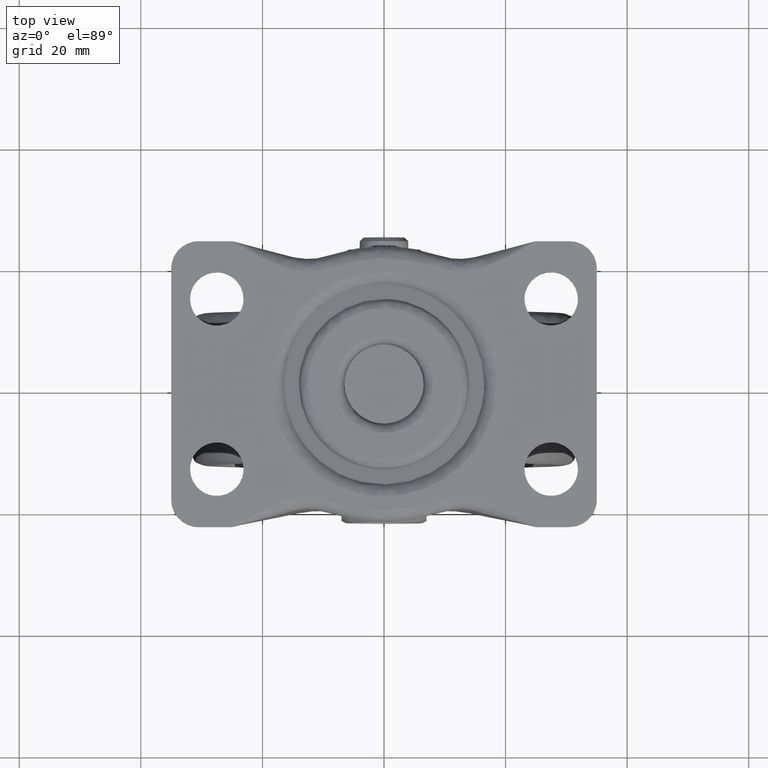
[diagram: clean part render]
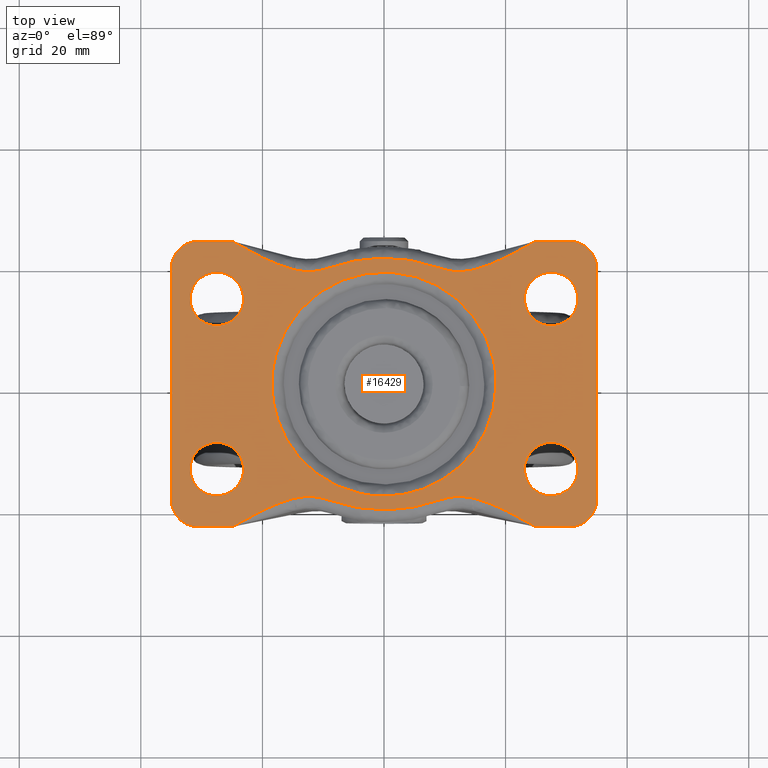
[diagram: same view with one face highlighted and labeled with its STEP entity id]
A machine part, top view. The second image highlights one B-rep face of the part: STEP entity #16429.
In plain terms, the highlighted face is a freeform B-spline surface patch.
Its self-contained STEP definition (entity closure, byte-faithful):
#7246=CARTESIAN_POINT('',(-28.019350644347199,9.630757984705339,52.500000000000000));
#7247=VERTEX_POINT('',#7246);
#7253=CARTESIAN_POINT('',(-23.099999900000000,14.0,52.500000000000000));
#7254=VERTEX_POINT('',#7253);
#7255=CARTESIAN_POINT('',(-28.019350644347199,9.630757984705339,52.500000000000007));
#7256=CARTESIAN_POINT('',(-27.760586132445432,9.599999900000000,52.500000000000000));
#7257=CARTESIAN_POINT('',(-27.500000000000000,9.599999900000000,52.500000000000000));
#7258=CARTESIAN_POINT('',(-23.099999900000004,9.599999900000000,52.500000000000000));
#7259=CARTESIAN_POINT('',(-23.099999900000000,14.0,52.500000000000000));
#7267=(BOUNDED_CURVE()B_SPLINE_CURVE(2,(#7255,#7256,#7257,#7258,#7259),.UNSPECIFIED.,.F.,.U.)B_SPLINE_CURVE_WITH_KNOTS((3,2,3),(0.229562473511464,0.250000000000000,0.500000000000000),.UNSPECIFIED.)CURVE()GEOMETRIC_REPRESENTATION_ITEM()RATIONAL_B_SPLINE_CURVE((0.956026754179692,0.976055948328750,1.0,0.707106781186547,1.0))REPRESENTATION_ITEM(''));
#7268=EDGE_CURVE('',#7247,#7254,#7267,.T.);
#7270=CARTESIAN_POINT('',(-27.231386419819021,18.391793212862190,52.500000000000000));
#7271=VERTEX_POINT('',#7270);
#7272=CARTESIAN_POINT('',(-23.099999900000000,14.0,52.500000000000000));
#7273=CARTESIAN_POINT('',(-23.099999900000011,18.139106788223827,52.500000000000000));
#7274=CARTESIAN_POINT('',(-27.231386419819014,18.391793212862186,52.500000000000007));
#7282=(BOUNDED_CURVE()B_SPLINE_CURVE(2,(#7272,#7273,#7274),.UNSPECIFIED.,.F.,.U.)B_SPLINE_CURVE_WITH_KNOTS((3,3),(0.500000000000000,0.739332962232321),.UNSPECIFIED.)CURVE()GEOMETRIC_REPRESENTATION_ITEM()RATIONAL_B_SPLINE_CURVE((1.0,0.719603993294468,0.976072041652527))REPRESENTATION_ITEM(''));
#7283=EDGE_CURVE('',#7254,#7271,#7282,.T.);
#7357=CARTESIAN_POINT('',(-31.900000100000000,14.0,52.500000000000000));
#7358=VERTEX_POINT('',#7357);
#7359=CARTESIAN_POINT('',(-27.231386419819014,18.391793212862186,52.500000000000000));
#7360=CARTESIAN_POINT('',(-27.365567838307832,18.400000100000007,52.500000000000000));
#7361=CARTESIAN_POINT('',(-27.500000000000000,18.400000100000000,52.500000000000000));
#7362=CARTESIAN_POINT('',(-31.900000099999996,18.400000100000000,52.500000000000000));
#7363=CARTESIAN_POINT('',(-31.900000100000000,14.0,52.500000000000000));
#7371=(BOUNDED_CURVE()B_SPLINE_CURVE(2,(#7359,#7360,#7361,#7362,#7363),.UNSPECIFIED.,.F.,.U.)B_SPLINE_CURVE_WITH_KNOTS((3,2,3),(0.739332962232322,0.750000000000000,1.0),.UNSPECIFIED.)CURVE()GEOMETRIC_REPRESENTATION_ITEM()RATIONAL_B_SPLINE_CURVE((0.976072041652528,0.987502787892081,1.0,0.707106781186547,1.0))REPRESENTATION_ITEM(''));
#7372=EDGE_CURVE('',#7271,#7358,#7371,.T.);
#7374=CARTESIAN_POINT('',(-31.900000100000000,14.0,52.500000000000000));
#7375=CARTESIAN_POINT('',(-31.900000099999989,10.092031997093882,52.499999999999993));
#7376=CARTESIAN_POINT('',(-28.019350644347206,9.630757984705339,52.500000000000000));
#7384=(BOUNDED_CURVE()B_SPLINE_CURVE(2,(#7374,#7375,#7376),.UNSPECIFIED.,.F.,.U.)B_SPLINE_CURVE_WITH_KNOTS((3,3),(0.0,0.229562473511464),.UNSPECIFIED.)CURVE()GEOMETRIC_REPRESENTATION_ITEM()RATIONAL_B_SPLINE_CURVE((1.0,0.731050832857798,0.956026754179692))REPRESENTATION_ITEM(''));
#7385=EDGE_CURVE('',#7358,#7247,#7384,.T.);
#7432=CARTESIAN_POINT('',(-28.019350644347199,-18.369242015294660,52.500000000000000));
#7433=VERTEX_POINT('',#7432);
#7439=CARTESIAN_POINT('',(-23.099999900000000,-14.0,52.500000000000000));
#7440=VERTEX_POINT('',#7439);
#7441=CARTESIAN_POINT('',(-28.019350644347199,-18.369242015294660,52.500000000000007));
#7442=CARTESIAN_POINT('',(-27.760586132445432,-18.400000100000003,52.500000000000000));
#7443=CARTESIAN_POINT('',(-27.500000000000000,-18.400000100000000,52.500000000000000));
#7444=CARTESIAN_POINT('',(-23.099999900000004,-18.400000100000000,52.500000000000000));
#7445=CARTESIAN_POINT('',(-23.099999900000000,-14.0,52.500000000000000));
#7453=(BOUNDED_CURVE()B_SPLINE_CURVE(2,(#7441,#7442,#7443,#7444,#7445),.UNSPECIFIED.,.F.,.U.)B_SPLINE_CURVE_WITH_KNOTS((3,2,3),(0.229562473511464,0.250000000000000,0.500000000000000),.UNSPECIFIED.)CURVE()GEOMETRIC_REPRESENTATION_ITEM()RATIONAL_B_SPLINE_CURVE((0.956026754179692,0.976055948328750,1.0,0.707106781186547,1.0))REPRESENTATION_ITEM(''));
#7454=EDGE_CURVE('',#7433,#7440,#7453,.T.);
#7456=CARTESIAN_POINT('',(-27.231386419819021,-9.608206787137814,52.500000000000000));
#7457=VERTEX_POINT('',#7456);
#7458=CARTESIAN_POINT('',(-23.099999900000000,-14.0,52.500000000000000));
#7459=CARTESIAN_POINT('',(-23.099999900000011,-9.860893211776180,52.500000000000000));
#7460=CARTESIAN_POINT('',(-27.231386419819014,-9.608206787137814,52.500000000000007));
#7468=(BOUNDED_CURVE()B_SPLINE_CURVE(2,(#7458,#7459,#7460),.UNSPECIFIED.,.F.,.U.)B_SPLINE_CURVE_WITH_KNOTS((3,3),(0.500000000000000,0.739332962232321),.UNSPECIFIED.)CURVE()GEOMETRIC_REPRESENTATION_ITEM()RATIONAL_B_SPLINE_CURVE((1.0,0.719603993294468,0.976072041652527))REPRESENTATION_ITEM(''));
#7469=EDGE_CURVE('',#7440,#7457,#7468,.T.);
#7543=CARTESIAN_POINT('',(-31.900000100000000,-14.0,52.500000000000000));
#7544=VERTEX_POINT('',#7543);
#7545=CARTESIAN_POINT('',(-27.231386419819014,-9.608206787137814,52.500000000000000));
#7546=CARTESIAN_POINT('',(-27.365567838307832,-9.599999900000002,52.500000000000000));
#7547=CARTESIAN_POINT('',(-27.500000000000000,-9.599999900000000,52.500000000000000));
#7548=CARTESIAN_POINT('',(-31.900000099999996,-9.599999900000000,52.500000000000000));
#7549=CARTESIAN_POINT('',(-31.900000100000000,-14.0,52.500000000000000));
#7557=(BOUNDED_CURVE()B_SPLINE_CURVE(2,(#7545,#7546,#7547,#7548,#7549),.UNSPECIFIED.,.F.,.U.)B_SPLINE_CURVE_WITH_KNOTS((3,2,3),(0.739332962232322,0.750000000000000,1.0),.UNSPECIFIED.)CURVE()GEOMETRIC_REPRESENTATION_ITEM()RATIONAL_B_SPLINE_CURVE((0.976072041652528,0.987502787892081,1.0,0.707106781186547,1.0))REPRESENTATION_ITEM(''));
#7558=EDGE_CURVE('',#7457,#7544,#7557,.T.);
#7560=CARTESIAN_POINT('',(-31.900000100000000,-14.0,52.500000000000000));
#7561=CARTESIAN_POINT('',(-31.900000099999989,-17.907968002906127,52.499999999999993));
#7562=CARTESIAN_POINT('',(-28.019350644347206,-18.369242015294670,52.500000000000000));
#7570=(BOUNDED_CURVE()B_SPLINE_CURVE(2,(#7560,#7561,#7562),.UNSPECIFIED.,.F.,.U.)B_SPLINE_CURVE_WITH_KNOTS((3,3),(0.0,0.229562473511464),.UNSPECIFIED.)CURVE()GEOMETRIC_REPRESENTATION_ITEM()RATIONAL_B_SPLINE_CURVE((1.0,0.731050832857798,0.956026754179692))REPRESENTATION_ITEM(''));
#7571=EDGE_CURVE('',#7544,#7433,#7570,.T.);
#7618=CARTESIAN_POINT('',(26.980649355652801,9.630757984705339,52.500000000000000));
#7619=VERTEX_POINT('',#7618);
#7625=CARTESIAN_POINT('',(31.900000100000000,14.0,52.500000000000000));
#7626=VERTEX_POINT('',#7625);
#7627=CARTESIAN_POINT('',(26.980649355652794,9.630757984705339,52.500000000000000));
#7628=CARTESIAN_POINT('',(27.239413867554571,9.599999900000000,52.500000000000000));
#7629=CARTESIAN_POINT('',(27.500000000000000,9.599999900000000,52.500000000000000));
#7630=CARTESIAN_POINT('',(31.900000099999996,9.599999900000000,52.500000000000000));
#7631=CARTESIAN_POINT('',(31.900000100000000,14.0,52.500000000000000));
#7639=(BOUNDED_CURVE()B_SPLINE_CURVE(2,(#7627,#7628,#7629,#7630,#7631),.UNSPECIFIED.,.F.,.U.)B_SPLINE_CURVE_WITH_KNOTS((3,2,3),(0.229562473511464,0.250000000000000,0.500000000000000),.UNSPECIFIED.)CURVE()GEOMETRIC_REPRESENTATION_ITEM()RATIONAL_B_SPLINE_CURVE((0.956026754179692,0.976055948328750,1.0,0.707106781186547,1.0))REPRESENTATION_ITEM(''));
#7640=EDGE_CURVE('',#7619,#7626,#7639,.T.);
#7642=CARTESIAN_POINT('',(27.768613580180979,18.391793212862190,52.500000000000000));
#7643=VERTEX_POINT('',#7642);
#7644=CARTESIAN_POINT('',(31.900000100000000,14.0,52.500000000000000));
#7645=CARTESIAN_POINT('',(31.900000099999993,18.139106788223827,52.500000000000000));
#7646=CARTESIAN_POINT('',(27.768613580180975,18.391793212862186,52.500000000000007));
#7654=(BOUNDED_CURVE()B_SPLINE_CURVE(2,(#7644,#7645,#7646),.UNSPECIFIED.,.F.,.U.)B_SPLINE_CURVE_WITH_KNOTS((3,3),(0.500000000000000,0.739332962232321),.UNSPECIFIED.)CURVE()GEOMETRIC_REPRESENTATION_ITEM()RATIONAL_B_SPLINE_CURVE((1.0,0.719603993294468,0.976072041652527))REPRESENTATION_ITEM(''));
#7655=EDGE_CURVE('',#7626,#7643,#7654,.T.);
#7729=CARTESIAN_POINT('',(23.099999900000000,14.0,52.500000000000000));
#7730=VERTEX_POINT('',#7729);
#7731=CARTESIAN_POINT('',(27.768613580180986,18.391793212862186,52.500000000000000));
#7732=CARTESIAN_POINT('',(27.634432161692171,18.400000100000007,52.500000000000000));
#7733=CARTESIAN_POINT('',(27.500000000000000,18.400000100000000,52.500000000000000));
#7734=CARTESIAN_POINT('',(23.099999900000004,18.400000100000000,52.500000000000000));
#7735=CARTESIAN_POINT('',(23.099999900000000,14.0,52.500000000000000));
#7743=(BOUNDED_CURVE()B_SPLINE_CURVE(2,(#7731,#7732,#7733,#7734,#7735),.UNSPECIFIED.,.F.,.U.)B_SPLINE_CURVE_WITH_KNOTS((3,2,3),(0.739332962232322,0.750000000000000,1.0),.UNSPECIFIED.)CURVE()GEOMETRIC_REPRESENTATION_ITEM()RATIONAL_B_SPLINE_CURVE((0.976072041652528,0.987502787892081,1.0,0.707106781186547,1.0))REPRESENTATION_ITEM(''));
#7744=EDGE_CURVE('',#7643,#7730,#7743,.T.);
#7746=CARTESIAN_POINT('',(23.099999900000000,14.0,52.500000000000000));
#7747=CARTESIAN_POINT('',(23.099999900000004,10.092031997093880,52.499999999999993));
#7748=CARTESIAN_POINT('',(26.980649355652798,9.630757984705339,52.500000000000000));
#7756=(BOUNDED_CURVE()B_SPLINE_CURVE(2,(#7746,#7747,#7748),.UNSPECIFIED.,.F.,.U.)B_SPLINE_CURVE_WITH_KNOTS((3,3),(0.0,0.229562473511464),.UNSPECIFIED.)CURVE()GEOMETRIC_REPRESENTATION_ITEM()RATIONAL_B_SPLINE_CURVE((1.0,0.731050832857798,0.956026754179692))REPRESENTATION_ITEM(''));
#7757=EDGE_CURVE('',#7730,#7619,#7756,.T.);
#7804=CARTESIAN_POINT('',(26.980649355652801,-18.369242015294660,52.500000000000000));
#7805=VERTEX_POINT('',#7804);
#7811=CARTESIAN_POINT('',(31.900000100000000,-14.0,52.500000000000000));
#7812=VERTEX_POINT('',#7811);
#7813=CARTESIAN_POINT('',(26.980649355652801,-18.369242015294663,52.500000000000000));
#7814=CARTESIAN_POINT('',(27.239413867554575,-18.400000100000007,52.500000000000007));
#7815=CARTESIAN_POINT('',(27.500000000000000,-18.400000100000000,52.500000000000000));
#7816=CARTESIAN_POINT('',(31.900000099999996,-18.400000100000000,52.500000000000000));
#7817=CARTESIAN_POINT('',(31.900000100000000,-14.0,52.500000000000000));
#7825=(BOUNDED_CURVE()B_SPLINE_CURVE(2,(#7813,#7814,#7815,#7816,#7817),.UNSPECIFIED.,.F.,.U.)B_SPLINE_CURVE_WITH_KNOTS((3,2,3),(0.229562473511464,0.250000000000000,0.500000000000000),.UNSPECIFIED.)CURVE()GEOMETRIC_REPRESENTATION_ITEM()RATIONAL_B_SPLINE_CURVE((0.956026754179691,0.976055948328749,1.0,0.707106781186547,1.0))REPRESENTATION_ITEM(''));
#7826=EDGE_CURVE('',#7805,#7812,#7825,.T.);
#7828=CARTESIAN_POINT('',(27.768613580180979,-9.608206787137814,52.500000000000000));
#7829=VERTEX_POINT('',#7828);
#7830=CARTESIAN_POINT('',(31.900000100000000,-14.0,52.500000000000000));
#7831=CARTESIAN_POINT('',(31.900000099999993,-9.860893211776180,52.500000000000000));
#7832=CARTESIAN_POINT('',(27.768613580180975,-9.608206787137814,52.500000000000007));
#7840=(BOUNDED_CURVE()B_SPLINE_CURVE(2,(#7830,#7831,#7832),.UNSPECIFIED.,.F.,.U.)B_SPLINE_CURVE_WITH_KNOTS((3,3),(0.500000000000000,0.739332962232321),.UNSPECIFIED.)CURVE()GEOMETRIC_REPRESENTATION_ITEM()RATIONAL_B_SPLINE_CURVE((1.0,0.719603993294468,0.976072041652527))REPRESENTATION_ITEM(''));
#7841=EDGE_CURVE('',#7812,#7829,#7840,.T.);
#7915=CARTESIAN_POINT('',(23.099999900000000,-14.0,52.500000000000000));
#7916=VERTEX_POINT('',#7915);
#7917=CARTESIAN_POINT('',(27.768613580180986,-9.608206787137814,52.500000000000000));
#7918=CARTESIAN_POINT('',(27.634432161692171,-9.599999900000002,52.500000000000000));
#7919=CARTESIAN_POINT('',(27.500000000000000,-9.599999900000000,52.500000000000000));
#7920=CARTESIAN_POINT('',(23.099999900000004,-9.599999900000000,52.500000000000000));
#7921=CARTESIAN_POINT('',(23.099999900000000,-14.0,52.500000000000000));
#7929=(BOUNDED_CURVE()B_SPLINE_CURVE(2,(#7917,#7918,#7919,#7920,#7921),.UNSPECIFIED.,.F.,.U.)B_SPLINE_CURVE_WITH_KNOTS((3,2,3),(0.739332962232322,0.750000000000000,1.0),.UNSPECIFIED.)CURVE()GEOMETRIC_REPRESENTATION_ITEM()RATIONAL_B_SPLINE_CURVE((0.976072041652528,0.987502787892081,1.0,0.707106781186547,1.0))REPRESENTATION_ITEM(''));
#7930=EDGE_CURVE('',#7829,#7916,#7929,.T.);
#7932=CARTESIAN_POINT('',(23.099999900000000,-14.0,52.500000000000000));
#7933=CARTESIAN_POINT('',(23.099999900000000,-17.907968002906127,52.500000000000014));
#7934=CARTESIAN_POINT('',(26.980649355652794,-18.369242015294656,52.500000000000000));
#7942=(BOUNDED_CURVE()B_SPLINE_CURVE(2,(#7932,#7933,#7934),.UNSPECIFIED.,.F.,.U.)B_SPLINE_CURVE_WITH_KNOTS((3,3),(0.0,0.229562473511464),.UNSPECIFIED.)CURVE()GEOMETRIC_REPRESENTATION_ITEM()RATIONAL_B_SPLINE_CURVE((1.0,0.731050832857798,0.956026754179692))REPRESENTATION_ITEM(''));
#7943=EDGE_CURVE('',#7916,#7805,#7942,.T.);
#8547=CARTESIAN_POINT('',(-4.009652861324489,-17.995191276802370,52.500000000000000));
#8548=VERTEX_POINT('',#8547);
#8562=CARTESIAN_POINT('',(18.436491673103699,0.0,52.500000000000000));
#8563=VERTEX_POINT('',#8562);
#8564=CARTESIAN_POINT('',(18.436491673103699,0.0,52.500000000000000));
#8565=CARTESIAN_POINT('',(18.436491673103699,-18.436491673103699,52.500000000000000));
#8566=CARTESIAN_POINT('',(0.0,-18.436491673103699,52.500000000000000));
#8567=CARTESIAN_POINT('',(-2.029111081623241,-18.436491673103699,52.500000000000000));
#8568=CARTESIAN_POINT('',(-4.009652861324490,-17.995191276802370,52.500000000000000));
#8576=(BOUNDED_CURVE()B_SPLINE_CURVE(2,(#8564,#8565,#8566,#8567,#8568),.UNSPECIFIED.,.F.,.U.)B_SPLINE_CURVE_WITH_KNOTS((3,2,3),(0.0,0.250000000000000,0.287215332191286),.UNSPECIFIED.)CURVE()GEOMETRIC_REPRESENTATION_ITEM()RATIONAL_B_SPLINE_CURVE((1.0,0.707106781186547,1.0,0.956399526261129,0.925779901433375))REPRESENTATION_ITEM(''));
#8577=EDGE_CURVE('',#8563,#8548,#8576,.T.);
#8579=CARTESIAN_POINT('',(-17.736415152733841,5.032276085577879,52.500000000000000));
#8580=VERTEX_POINT('',#8579);
#8581=CARTESIAN_POINT('',(-17.736415152733841,5.032276085577879,52.500000000000000));
#8582=CARTESIAN_POINT('',(-13.933295249412181,18.436491673103699,52.499999999999993));
#8583=CARTESIAN_POINT('',(0.0,18.436491673103699,52.500000000000000));
#8584=CARTESIAN_POINT('',(18.436491673103699,18.436491673103699,52.500000000000000));
#8585=CARTESIAN_POINT('',(18.436491673103699,0.0,52.500000000000000));
#8593=(BOUNDED_CURVE()B_SPLINE_CURVE(2,(#8581,#8582,#8583,#8584,#8585),.UNSPECIFIED.,.F.,.U.)B_SPLINE_CURVE_WITH_KNOTS((3,2,3),(0.546505535790469,0.750000000000000,1.0),.UNSPECIFIED.)CURVE()GEOMETRIC_REPRESENTATION_ITEM()RATIONAL_B_SPLINE_CURVE((0.911301444593821,0.761591405467806,1.0,0.707106781186547,1.0))REPRESENTATION_ITEM(''));
#8594=EDGE_CURVE('',#8580,#8563,#8593,.T.);
#8681=CARTESIAN_POINT('',(-18.436491673103699,0.0,52.500000000000000));
#8682=VERTEX_POINT('',#8681);
#8683=CARTESIAN_POINT('',(-18.436491673103699,0.0,52.500000000000000));
#8684=CARTESIAN_POINT('',(-18.436491673103692,2.564834410756939,52.500000000000007));
#8685=CARTESIAN_POINT('',(-17.736415152733844,5.032276085577879,52.500000000000007));
#8693=(BOUNDED_CURVE()B_SPLINE_CURVE(2,(#8683,#8684,#8685),.UNSPECIFIED.,.F.,.U.)B_SPLINE_CURVE_WITH_KNOTS((3,3),(0.500000000000000,0.546505535790469),.UNSPECIFIED.)CURVE()GEOMETRIC_REPRESENTATION_ITEM()RATIONAL_B_SPLINE_CURVE((1.0,0.945515375718742,0.911301444593822))REPRESENTATION_ITEM(''));
#8694=EDGE_CURVE('',#8682,#8580,#8693,.T.);
#8696=CARTESIAN_POINT('',(-4.009652861324489,-17.995191276802366,52.500000000000000));
#8697=CARTESIAN_POINT('',(-18.436491673103703,-14.780631642154086,52.499999999999993));
#8698=CARTESIAN_POINT('',(-18.436491673103699,0.0,52.500000000000000));
#8706=(BOUNDED_CURVE()B_SPLINE_CURVE(2,(#8696,#8697,#8698),.UNSPECIFIED.,.F.,.U.)B_SPLINE_CURVE_WITH_KNOTS((3,3),(0.287215332191286,0.500000000000000),.UNSPECIFIED.)CURVE()GEOMETRIC_REPRESENTATION_ITEM()RATIONAL_B_SPLINE_CURVE((0.925779901433375,0.750707254925418,1.0))REPRESENTATION_ITEM(''));
#8707=EDGE_CURVE('',#8548,#8682,#8706,.T.);
#11189=CARTESIAN_POINT('',(-12.444766159390859,18.426391028678349,52.500000000000000));
#11190=VERTEX_POINT('',#11189);
#11764=CARTESIAN_POINT('',(12.444766159390859,18.426391028678349,52.500000000000000));
#11765=VERTEX_POINT('',#11764);
#12370=CARTESIAN_POINT('',(-12.444766159390840,-18.426391028678349,52.500000000000000));
#12371=VERTEX_POINT('',#12370);
#12973=CARTESIAN_POINT('',(12.444766159390859,-18.426391028678349,52.500000000000000));
#12974=VERTEX_POINT('',#12973);
#13063=CARTESIAN_POINT('',(-24.999914554479648,-23.500000000000000,52.500000000000000));
#13064=VERTEX_POINT('',#13063);
#13074=CARTESIAN_POINT('',(-14.750145525630259,-18.787422903256250,52.500000000000000));
#13075=VERTEX_POINT('',#13074);
#13089=CARTESIAN_POINT('',(-24.999914554479648,-23.500000000000000,52.500000000000000));
#13090=CARTESIAN_POINT('',(-21.666672481771901,-21.606396040465299,52.500000000000000));
#13091=CARTESIAN_POINT('',(-18.333430409064100,-19.712792080930601,52.500000000000000));
#13092=CARTESIAN_POINT('',(-14.750145525630280,-18.787422903256250,52.500000000000000));
#13093=QUASI_UNIFORM_CURVE('',3,(#13089,#13090,#13091,#13092),.UNSPECIFIED.,.F.,.U.);
#13094=EDGE_CURVE('',#13064,#13075,#13093,.T.);
#13118=CARTESIAN_POINT('',(-14.750145525630250,-18.787422903256282,52.500000000000000));
#13119=CARTESIAN_POINT('',(-13.615090640419497,-18.494299459290485,52.500000000000000));
#13120=CARTESIAN_POINT('',(-12.444766159390840,-18.426391028678349,52.500000000000000));
#13128=(BOUNDED_CURVE()B_SPLINE_CURVE(2,(#13118,#13119,#13120),.UNSPECIFIED.,.F.,.U.)CURVE()GEOMETRIC_REPRESENTATION_ITEM()QUASI_UNIFORM_CURVE()RATIONAL_B_SPLINE_CURVE((1.0,0.995262111242610,1.0))REPRESENTATION_ITEM(''));
#13129=EDGE_CURVE('',#13075,#12371,#13128,.T.);
#13154=CARTESIAN_POINT('',(-8.847856370996681,-19.157283002046452,52.500000000000000));
#13155=VERTEX_POINT('',#13154);
#13156=CARTESIAN_POINT('',(-12.444766159390840,-18.426391028678349,52.500000000000000));
#13157=CARTESIAN_POINT('',(-11.827580178150980,-18.461095044464820,52.500000000000000));
#13158=CARTESIAN_POINT('',(-11.219369638555300,-18.539969546563121,52.500000000000007));
#13159=CARTESIAN_POINT('',(-10.020377096581910,-18.783488922307090,52.500000000000007));
#13160=CARTESIAN_POINT('',(-9.429594212623886,-18.948129457466351,52.499999999999993));
#13161=CARTESIAN_POINT('',(-8.847856370996681,-19.157283002046452,52.500000000000000));
#13162=B_SPLINE_CURVE_WITH_KNOTS('',3,(#13156,#13157,#13158,#13159,#13160,#13161),.UNSPECIFIED.,.F.,.U.,(4,2,4),(0.0,0.500000000000000,1.0),.UNSPECIFIED.);
#13163=EDGE_CURVE('',#12371,#13155,#13162,.T.);
#13236=CARTESIAN_POINT('',(8.847856370996700,-19.157283002046452,52.500000000000000));
#13237=VERTEX_POINT('',#13236);
#13251=CARTESIAN_POINT('',(-8.847856370996713,-19.157283002046452,52.500000000000000));
#13252=CARTESIAN_POINT('',(-1.108829E-014,-22.338373159003222,52.500000000000000));
#13253=CARTESIAN_POINT('',(8.847856370996700,-19.157283002046459,52.500000000000000));
#13261=(BOUNDED_CURVE()B_SPLINE_CURVE(2,(#13251,#13252,#13253),.UNSPECIFIED.,.F.,.U.)CURVE()GEOMETRIC_REPRESENTATION_ITEM()QUASI_UNIFORM_CURVE()RATIONAL_B_SPLINE_CURVE((1.0,0.941493803983767,1.0))REPRESENTATION_ITEM(''));
#13262=EDGE_CURVE('',#13155,#13237,#13261,.T.);
#13293=CARTESIAN_POINT('',(8.847856370996700,-19.157283002046452,52.500000000000000));
#13294=CARTESIAN_POINT('',(9.429594212623906,-18.948129457466351,52.500000000000000));
#13295=CARTESIAN_POINT('',(10.020377096581930,-18.783488922307090,52.500000000000007));
#13296=CARTESIAN_POINT('',(11.219369638555310,-18.539969546563121,52.500000000000007));
#13297=CARTESIAN_POINT('',(11.827580178151001,-18.461095044464820,52.499999999999993));
#13298=CARTESIAN_POINT('',(12.444766159390859,-18.426391028678349,52.500000000000000));
#13299=B_SPLINE_CURVE_WITH_KNOTS('',3,(#13293,#13294,#13295,#13296,#13297,#13298),.UNSPECIFIED.,.F.,.U.,(4,2,4),(0.0,0.500000000000000,1.0),.UNSPECIFIED.);
#13300=EDGE_CURVE('',#13237,#12974,#13299,.T.);
#13322=CARTESIAN_POINT('',(14.750145525630300,-18.787422903256250,52.500000000000000));
#13323=VERTEX_POINT('',#13322);
#13324=CARTESIAN_POINT('',(12.444766159390859,-18.426391028678360,52.500000000000000));
#13325=CARTESIAN_POINT('',(13.615090640419528,-18.494299459290485,52.500000000000000));
#13326=CARTESIAN_POINT('',(14.750145525630289,-18.787422903256282,52.500000000000000));
#13334=(BOUNDED_CURVE()B_SPLINE_CURVE(2,(#13324,#13325,#13326),.UNSPECIFIED.,.F.,.U.)CURVE()GEOMETRIC_REPRESENTATION_ITEM()QUASI_UNIFORM_CURVE()RATIONAL_B_SPLINE_CURVE((1.0,0.995262111242610,1.0))REPRESENTATION_ITEM(''));
#13335=EDGE_CURVE('',#12974,#13323,#13334,.T.);
#13393=CARTESIAN_POINT('',(24.999914554479648,-23.500000000000000,52.500000000000000));
#13394=VERTEX_POINT('',#13393);
#13402=CARTESIAN_POINT('',(14.750145525630300,-18.787422903256250,52.500000000000000));
#13403=CARTESIAN_POINT('',(18.333430409064100,-19.712792080930601,52.500000000000000));
#13404=CARTESIAN_POINT('',(21.666672481771901,-21.606396040465299,52.500000000000000));
#13405=CARTESIAN_POINT('',(24.999914554479648,-23.500000000000000,52.500000000000000));
#13406=QUASI_UNIFORM_CURVE('',3,(#13402,#13403,#13404,#13405),.UNSPECIFIED.,.F.,.U.);
#13407=EDGE_CURVE('',#13323,#13394,#13406,.T.);
#13432=CARTESIAN_POINT('',(24.999914554479648,23.500000000000000,52.500000000000000));
#13433=VERTEX_POINT('',#13432);
#13443=CARTESIAN_POINT('',(14.750145525630280,18.787422903256250,52.500000000000000));
#13444=VERTEX_POINT('',#13443);
#13458=CARTESIAN_POINT('',(24.999914554479648,23.500000000000000,52.500000000000000));
#13459=CARTESIAN_POINT('',(21.666672481771901,21.606396040465299,52.500000000000000));
#13460=CARTESIAN_POINT('',(18.333430409064100,19.712792080930601,52.500000000000000));
#13461=CARTESIAN_POINT('',(14.750145525630280,18.787422903256250,52.500000000000000));
#13462=QUASI_UNIFORM_CURVE('',3,(#13458,#13459,#13460,#13461),.UNSPECIFIED.,.F.,.U.);
#13463=EDGE_CURVE('',#13433,#13444,#13462,.T.);
#13487=CARTESIAN_POINT('',(14.750145525630280,18.787422903256282,52.500000000000000));
#13488=CARTESIAN_POINT('',(13.615090640419515,18.494299459290481,52.500000000000007));
#13489=CARTESIAN_POINT('',(12.444766159390859,18.426391028678360,52.500000000000000));
#13497=(BOUNDED_CURVE()B_SPLINE_CURVE(2,(#13487,#13488,#13489),.UNSPECIFIED.,.F.,.U.)CURVE()GEOMETRIC_REPRESENTATION_ITEM()QUASI_UNIFORM_CURVE()RATIONAL_B_SPLINE_CURVE((1.0,0.995262111242610,1.0))REPRESENTATION_ITEM(''));
#13498=EDGE_CURVE('',#13444,#11765,#13497,.T.);
#13523=CARTESIAN_POINT('',(8.847856370996681,19.157283002046452,52.500000000000000));
#13524=VERTEX_POINT('',#13523);
#13525=CARTESIAN_POINT('',(12.444766159390859,18.426391028678349,52.500000000000000));
#13526=CARTESIAN_POINT('',(11.827580178151001,18.461095044464820,52.500000000000000));
#13527=CARTESIAN_POINT('',(11.219369638555310,18.539969546563121,52.500000000000007));
#13528=CARTESIAN_POINT('',(10.020377096581919,18.783488922307090,52.500000000000007));
#13529=CARTESIAN_POINT('',(9.429594212623890,18.948129457466351,52.499999999999993));
#13530=CARTESIAN_POINT('',(8.847856370996681,19.157283002046452,52.500000000000000));
#13531=B_SPLINE_CURVE_WITH_KNOTS('',3,(#13525,#13526,#13527,#13528,#13529,#13530),.UNSPECIFIED.,.F.,.U.,(4,2,4),(0.0,0.500000000000000,1.0),.UNSPECIFIED.);
#13532=EDGE_CURVE('',#11765,#13524,#13531,.T.);
#13608=CARTESIAN_POINT('',(-8.847856370996700,19.157283002046452,52.500000000000000));
#13609=VERTEX_POINT('',#13608);
#13623=CARTESIAN_POINT('',(8.847856370996713,19.157283002046452,52.500000000000000));
#13624=CARTESIAN_POINT('',(9.728389E-015,22.338373159003222,52.500000000000000));
#13625=CARTESIAN_POINT('',(-8.847856370996700,19.157283002046459,52.500000000000000));
#13633=(BOUNDED_CURVE()B_SPLINE_CURVE(2,(#13623,#13624,#13625),.UNSPECIFIED.,.F.,.U.)CURVE()GEOMETRIC_REPRESENTATION_ITEM()QUASI_UNIFORM_CURVE()RATIONAL_B_SPLINE_CURVE((1.0,0.941493803983767,1.0))REPRESENTATION_ITEM(''));
#13634=EDGE_CURVE('',#13524,#13609,#13633,.T.);
#13662=CARTESIAN_POINT('',(-8.847856370996700,19.157283002046452,52.500000000000000));
#13663=CARTESIAN_POINT('',(-9.429594212623906,18.948129457466351,52.500000000000000));
#13664=CARTESIAN_POINT('',(-10.020377096581930,18.783488922307090,52.500000000000007));
#13665=CARTESIAN_POINT('',(-11.219369638555310,18.539969546563121,52.500000000000007));
#13666=CARTESIAN_POINT('',(-11.827580178151001,18.461095044464820,52.499999999999993));
#13667=CARTESIAN_POINT('',(-12.444766159390859,18.426391028678349,52.500000000000000));
#13668=B_SPLINE_CURVE_WITH_KNOTS('',3,(#13662,#13663,#13664,#13665,#13666,#13667),.UNSPECIFIED.,.F.,.U.,(4,2,4),(0.0,0.500000000000000,1.0),.UNSPECIFIED.);
#13669=EDGE_CURVE('',#13609,#11190,#13668,.T.);
#13691=CARTESIAN_POINT('',(-14.750145525630300,18.787422903256250,52.500000000000000));
#13692=VERTEX_POINT('',#13691);
#13693=CARTESIAN_POINT('',(-12.444766159390859,18.426391028678360,52.500000000000000));
#13694=CARTESIAN_POINT('',(-13.615090640419515,18.494299459290481,52.500000000000000));
#13695=CARTESIAN_POINT('',(-14.750145525630289,18.787422903256289,52.500000000000000));
#13703=(BOUNDED_CURVE()B_SPLINE_CURVE(2,(#13693,#13694,#13695),.UNSPECIFIED.,.F.,.U.)CURVE()GEOMETRIC_REPRESENTATION_ITEM()QUASI_UNIFORM_CURVE()RATIONAL_B_SPLINE_CURVE((1.0,0.995262111242610,1.0))REPRESENTATION_ITEM(''));
#13704=EDGE_CURVE('',#11190,#13692,#13703,.T.);
#13762=CARTESIAN_POINT('',(-24.999914554479648,23.500000000000000,52.500000000000000));
#13763=VERTEX_POINT('',#13762);
#13771=CARTESIAN_POINT('',(-14.750145525630300,18.787422903256250,52.500000000000000));
#13772=CARTESIAN_POINT('',(-18.333430409064100,19.712792080930601,52.500000000000000));
#13773=CARTESIAN_POINT('',(-21.666672481771901,21.606396040465299,52.500000000000000));
#13774=CARTESIAN_POINT('',(-24.999914554479648,23.500000000000000,52.500000000000000));
#13775=QUASI_UNIFORM_CURVE('',3,(#13771,#13772,#13773,#13774),.UNSPECIFIED.,.F.,.U.);
#13776=EDGE_CURVE('',#13692,#13763,#13775,.T.);
#16200=CARTESIAN_POINT('',(-30.500000000000000,23.500000000000000,52.500000000000000));
#16201=VERTEX_POINT('',#16200);
#16208=CARTESIAN_POINT('',(-35.0,19.0,52.500000000000000));
#16209=VERTEX_POINT('',#16208);
#16215=CARTESIAN_POINT('',(-34.999999999999993,19.0,52.500000000000000));
#16216=CARTESIAN_POINT('',(-35.0,23.500000000000007,52.500000000000000));
#16217=CARTESIAN_POINT('',(-30.500000000000000,23.500000000000000,52.500000000000000));
#16225=(BOUNDED_CURVE()B_SPLINE_CURVE(2,(#16215,#16216,#16217),.UNSPECIFIED.,.F.,.U.)CURVE()GEOMETRIC_REPRESENTATION_ITEM()QUASI_UNIFORM_CURVE()RATIONAL_B_SPLINE_CURVE((1.0,0.707106781186547,1.0))REPRESENTATION_ITEM(''));
#16226=EDGE_CURVE('',#16209,#16201,#16225,.T.);
#16237=CARTESIAN_POINT('',(-35.0,-19.0,52.500000000000000));
#16238=VERTEX_POINT('',#16237);
#16244=CARTESIAN_POINT('',(-35.0,19.0,52.500000000000000));
#16245=CARTESIAN_POINT('',(-35.0,-19.0,52.500000000000000));
#16246=QUASI_UNIFORM_CURVE('',1,(#16244,#16245),.UNSPECIFIED.,.F.,.U.);
#16247=EDGE_CURVE('',#16209,#16238,#16246,.T.);
#16269=CARTESIAN_POINT('',(-30.499998586283450,-23.500000000000000,52.500000000000000));
#16270=VERTEX_POINT('',#16269);
#16276=CARTESIAN_POINT('',(-30.499998586283450,-23.500000000000000,52.500000000000000));
#16277=CARTESIAN_POINT('',(-32.363960031030288,-23.500000585580480,52.500000000000000));
#16278=CARTESIAN_POINT('',(-33.681980015515137,-22.181981015163700,52.500000000000000));
#16279=CARTESIAN_POINT('',(-34.999999999999993,-20.863961444746927,52.500000000000000));
#16280=CARTESIAN_POINT('',(-34.999999999999993,-19.0,52.500000000000000));
#16288=(BOUNDED_CURVE()B_SPLINE_CURVE(2,(#16276,#16277,#16278,#16279,#16280),.UNSPECIFIED.,.F.,.U.)B_SPLINE_CURVE_WITH_KNOTS((3,2,3),(0.0,0.500000000000000,1.0),.UNSPECIFIED.)CURVE()GEOMETRIC_REPRESENTATION_ITEM()RATIONAL_B_SPLINE_CURVE((1.0,0.923879502455400,1.0,0.923879502455400,1.0))REPRESENTATION_ITEM(''));
#16289=EDGE_CURVE('',#16270,#16238,#16288,.T.);
#16314=CARTESIAN_POINT('',(-38.496499864326417,-25.847649908904881,52.500000000000000));
#16315=CARTESIAN_POINT('',(38.496501741872727,-25.847649908904881,52.500000000000000));
#16316=CARTESIAN_POINT('',(-38.496499864326417,25.847651169543120,52.500000000000000));
#16317=CARTESIAN_POINT('',(38.496501741872727,25.847651169543120,52.500000000000000));
#16318=B_SPLINE_SURFACE_WITH_KNOTS('',1,1,((#16314,#16316),(#16315,#16317)),.UNSPECIFIED.,.F.,.F.,.U.,(2,2),(2,2),(0.0,76.993001606199158),(0.0,51.695301078447997),.UNSPECIFIED.);
#16319=CARTESIAN_POINT('',(-30.499998586283450,-23.500000000000000,52.500000000000000));
#16320=CARTESIAN_POINT('',(-24.999914554479648,-23.500000000000000,52.500000000000000));
#16321=QUASI_UNIFORM_CURVE('',1,(#16319,#16320),.UNSPECIFIED.,.F.,.U.);
#16322=EDGE_CURVE('',#16270,#13064,#16321,.T.);
#16323=ORIENTED_EDGE('',*,*,#16322,.T.);
#16324=ORIENTED_EDGE('',*,*,#13094,.T.);
#16325=ORIENTED_EDGE('',*,*,#13129,.T.);
#16326=ORIENTED_EDGE('',*,*,#13163,.T.);
#16327=ORIENTED_EDGE('',*,*,#13262,.T.);
#16328=ORIENTED_EDGE('',*,*,#13300,.T.);
#16329=ORIENTED_EDGE('',*,*,#13335,.T.);
#16330=ORIENTED_EDGE('',*,*,#13407,.T.);
#16331=CARTESIAN_POINT('',(30.500000000000000,-23.500000000000000,52.500000000000000));
#16332=VERTEX_POINT('',#16331);
#16333=CARTESIAN_POINT('',(24.999914554479648,-23.500000000000000,52.500000000000000));
#16334=CARTESIAN_POINT('',(30.500000000000000,-23.500000000000000,52.500000000000000));
#16335=QUASI_UNIFORM_CURVE('',1,(#16333,#16334),.UNSPECIFIED.,.F.,.U.);
#16336=EDGE_CURVE('',#13394,#16332,#16335,.T.);
#16337=ORIENTED_EDGE('',*,*,#16336,.T.);
#16338=CARTESIAN_POINT('',(35.0,-19.0,52.500000000000000));
#16339=VERTEX_POINT('',#16338);
#16340=CARTESIAN_POINT('',(34.999999999999993,-19.0,52.500000000000000));
#16341=CARTESIAN_POINT('',(35.0,-23.500000000000007,52.500000000000000));
#16342=CARTESIAN_POINT('',(30.500000000000000,-23.500000000000000,52.500000000000000));
#16350=(BOUNDED_CURVE()B_SPLINE_CURVE(2,(#16340,#16341,#16342),.UNSPECIFIED.,.F.,.U.)CURVE()GEOMETRIC_REPRESENTATION_ITEM()QUASI_UNIFORM_CURVE()RATIONAL_B_SPLINE_CURVE((1.0,0.707106781186547,1.0))REPRESENTATION_ITEM(''));
#16351=EDGE_CURVE('',#16339,#16332,#16350,.T.);
#16352=ORIENTED_EDGE('',*,*,#16351,.F.);
#16353=CARTESIAN_POINT('',(35.0,19.0,52.500000000000000));
#16354=VERTEX_POINT('',#16353);
#16355=CARTESIAN_POINT('',(35.0,-19.0,52.500000000000000));
#16356=CARTESIAN_POINT('',(35.0,19.0,52.500000000000000));
#16357=QUASI_UNIFORM_CURVE('',1,(#16355,#16356),.UNSPECIFIED.,.F.,.U.);
#16358=EDGE_CURVE('',#16339,#16354,#16357,.T.);
#16359=ORIENTED_EDGE('',*,*,#16358,.T.);
#16360=CARTESIAN_POINT('',(30.499998586283450,23.500000000000000,52.500000000000000));
#16361=VERTEX_POINT('',#16360);
#16362=CARTESIAN_POINT('',(30.499998586283450,23.500000000000000,52.500000000000000));
#16363=CARTESIAN_POINT('',(32.363960031030288,23.500000585580477,52.500000000000000));
#16364=CARTESIAN_POINT('',(33.681980015515137,22.181981015163700,52.500000000000000));
#16365=CARTESIAN_POINT('',(35.000000000000007,20.863961444746938,52.500000000000000));
#16366=CARTESIAN_POINT('',(34.999999999999993,19.0,52.500000000000000));
#16374=(BOUNDED_CURVE()B_SPLINE_CURVE(2,(#16362,#16363,#16364,#16365,#16366),.UNSPECIFIED.,.F.,.U.)B_SPLINE_CURVE_WITH_KNOTS((3,2,3),(0.0,0.500000000000000,1.0),.UNSPECIFIED.)CURVE()GEOMETRIC_REPRESENTATION_ITEM()RATIONAL_B_SPLINE_CURVE((1.0,0.923879502455401,1.0,0.923879502455401,1.0))REPRESENTATION_ITEM(''));
#16375=EDGE_CURVE('',#16361,#16354,#16374,.T.);
#16376=ORIENTED_EDGE('',*,*,#16375,.F.);
#16377=CARTESIAN_POINT('',(30.499998586283450,23.500000000000000,52.500000000000000));
#16378=CARTESIAN_POINT('',(24.999914554479648,23.500000000000000,52.500000000000000));
#16379=QUASI_UNIFORM_CURVE('',1,(#16377,#16378),.UNSPECIFIED.,.F.,.U.);
#16380=EDGE_CURVE('',#16361,#13433,#16379,.T.);
#16381=ORIENTED_EDGE('',*,*,#16380,.T.);
#16382=ORIENTED_EDGE('',*,*,#13463,.T.);
#16383=ORIENTED_EDGE('',*,*,#13498,.T.);
#16384=ORIENTED_EDGE('',*,*,#13532,.T.);
#16385=ORIENTED_EDGE('',*,*,#13634,.T.);
#16386=ORIENTED_EDGE('',*,*,#13669,.T.);
#16387=ORIENTED_EDGE('',*,*,#13704,.T.);
#16388=ORIENTED_EDGE('',*,*,#13776,.T.);
#16389=CARTESIAN_POINT('',(-24.999914554479648,23.500000000000000,52.500000000000000));
#16390=CARTESIAN_POINT('',(-30.500000000000000,23.500000000000000,52.500000000000000));
#16391=QUASI_UNIFORM_CURVE('',1,(#16389,#16390),.UNSPECIFIED.,.F.,.U.);
#16392=EDGE_CURVE('',#13763,#16201,#16391,.T.);
#16393=ORIENTED_EDGE('',*,*,#16392,.T.);
#16394=ORIENTED_EDGE('',*,*,#16226,.F.);
#16395=ORIENTED_EDGE('',*,*,#16247,.T.);
#16396=ORIENTED_EDGE('',*,*,#16289,.F.);
#16397=EDGE_LOOP('',(#16323,#16324,#16325,#16326,#16327,#16328,#16329,#16330,#16337,#16352,#16359,#16376,#16381,#16382,#16383,#16384,#16385,#16386,#16387,#16388,#16393,#16394,#16395,#16396));
#16398=FACE_OUTER_BOUND('',#16397,.T.);
#16399=ORIENTED_EDGE('',*,*,#8694,.T.);
#16400=ORIENTED_EDGE('',*,*,#8594,.T.);
#16401=ORIENTED_EDGE('',*,*,#8577,.T.);
#16402=ORIENTED_EDGE('',*,*,#8707,.T.);
#16403=EDGE_LOOP('',(#16399,#16400,#16401,#16402));
#16404=FACE_BOUND('',#16403,.T.);
#16405=ORIENTED_EDGE('',*,*,#7841,.F.);
#16406=ORIENTED_EDGE('',*,*,#7826,.F.);
#16407=ORIENTED_EDGE('',*,*,#7943,.F.);
#16408=ORIENTED_EDGE('',*,*,#7930,.F.);
#16409=EDGE_LOOP('',(#16405,#16406,#16407,#16408));
#16410=FACE_BOUND('',#16409,.T.);
#16411=ORIENTED_EDGE('',*,*,#7655,.F.);
#16412=ORIENTED_EDGE('',*,*,#7640,.F.);
#16413=ORIENTED_EDGE('',*,*,#7757,.F.);
#16414=ORIENTED_EDGE('',*,*,#7744,.F.);
#16415=EDGE_LOOP('',(#16411,#16412,#16413,#16414));
#16416=FACE_BOUND('',#16415,.T.);
#16417=ORIENTED_EDGE('',*,*,#7469,.F.);
#16418=ORIENTED_EDGE('',*,*,#7454,.F.);
#16419=ORIENTED_EDGE('',*,*,#7571,.F.);
#16420=ORIENTED_EDGE('',*,*,#7558,.F.);
#16421=EDGE_LOOP('',(#16417,#16418,#16419,#16420));
#16422=FACE_BOUND('',#16421,.T.);
#16423=ORIENTED_EDGE('',*,*,#7283,.F.);
#16424=ORIENTED_EDGE('',*,*,#7268,.F.);
#16425=ORIENTED_EDGE('',*,*,#7385,.F.);
#16426=ORIENTED_EDGE('',*,*,#7372,.F.);
#16427=EDGE_LOOP('',(#16423,#16424,#16425,#16426));
#16428=FACE_BOUND('',#16427,.T.);
#16429=ADVANCED_FACE('',(#16398,#16404,#16410,#16416,#16422,#16428),#16318,.T.);